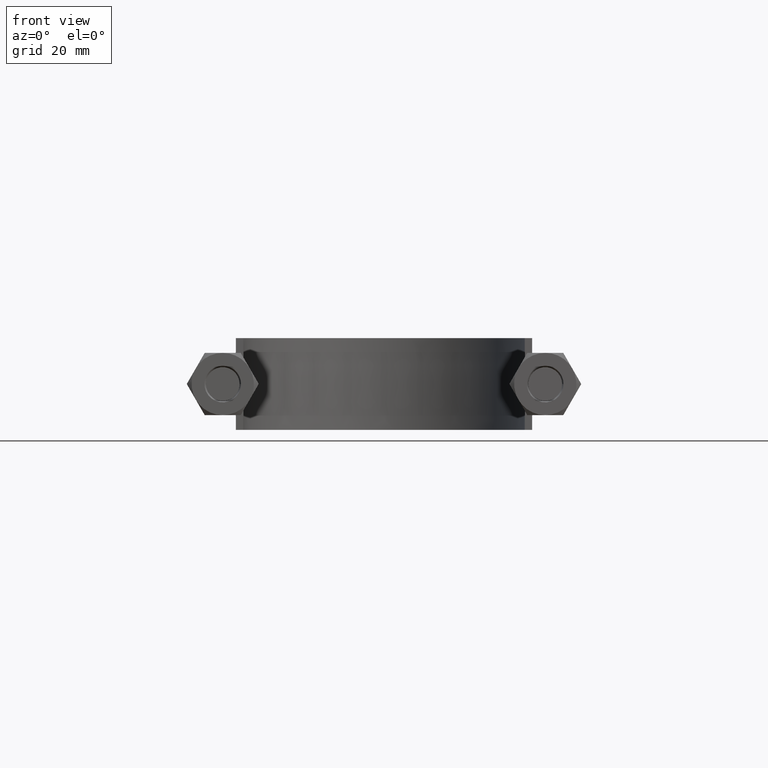
[diagram: clean part render]
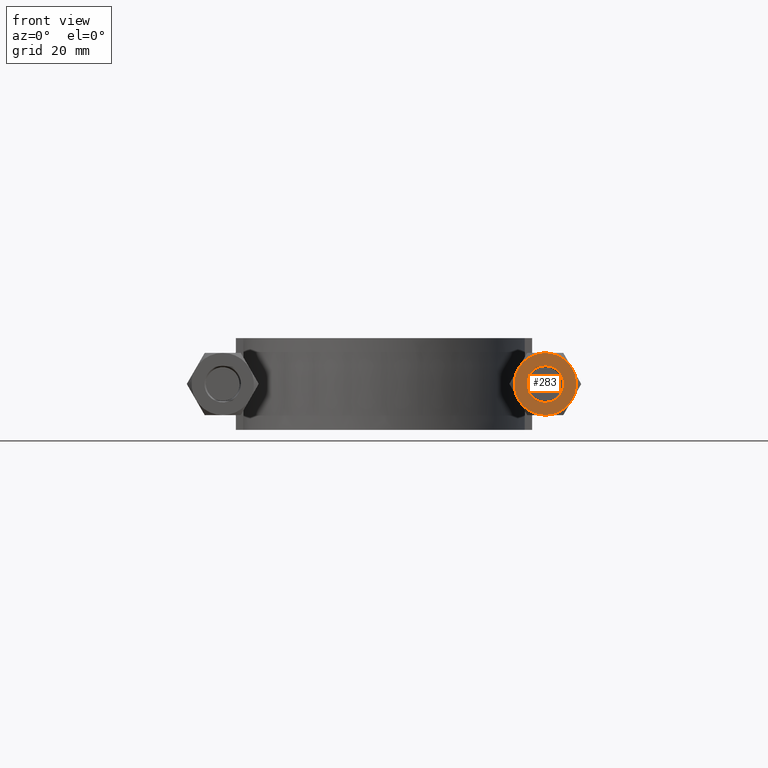
[diagram: same view with one face highlighted and labeled with its STEP entity id]
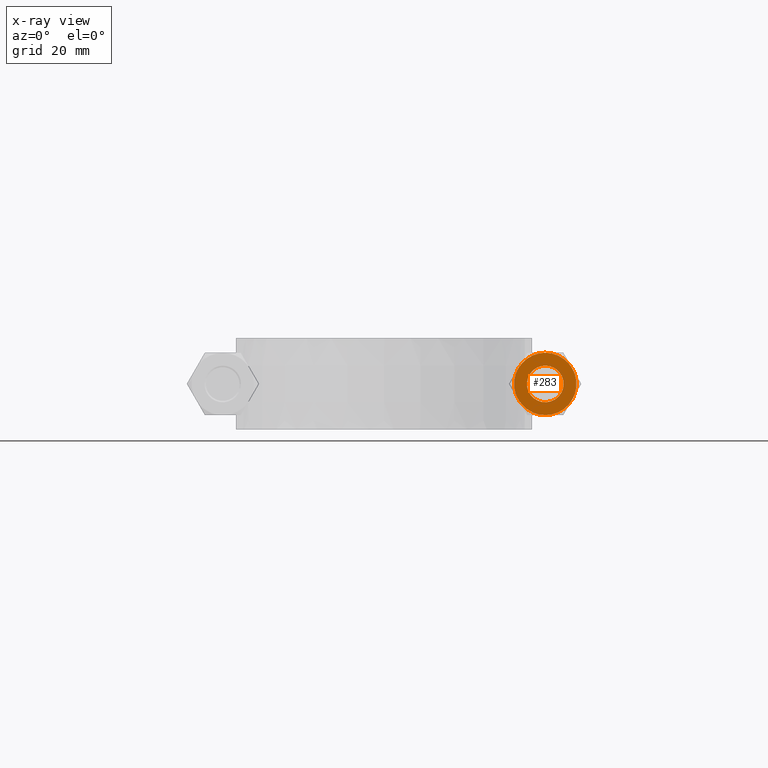
[diagram: x-ray of the same camera — body ghosted, the highlighted face saturated]
A machine part, front view. The second image highlights one B-rep face of the part: STEP entity #283.
The next image is the same camera in x-ray: the body ghosted, the highlighted face saturated — about 0% of this face is hidden behind the body in this view.
In plain terms, the highlighted planar face has unit normal (0, 1, 0).
Its self-contained STEP definition (entity closure, byte-faithful):
#283 = ADVANCED_FACE( '', ( #442, #443 ), #444, .F. );
#442 = FACE_OUTER_BOUND( '', #1439, .T. );
#443 = FACE_BOUND( '', #1440, .T. );
#444 = PLANE( '', #1441 );
#1439 = EDGE_LOOP( '', ( #1914, #1915, #1916, #1917, #1918, #1919 ) );
#1440 = EDGE_LOOP( '', ( #1920 ) );
#1441 = AXIS2_PLACEMENT_3D( '', #1921, #1922, #1923 );
#1914 = ORIENTED_EDGE( '', *, *, #2136, .F. );
#1915 = ORIENTED_EDGE( '', *, *, #2142, .F. );
#1916 = ORIENTED_EDGE( '', *, *, #2117, .F. );
#1917 = ORIENTED_EDGE( '', *, *, #2133, .F. );
#1918 = ORIENTED_EDGE( '', *, *, #2105, .F. );
#1919 = ORIENTED_EDGE( '', *, *, #2143, .F. );
#1920 = ORIENTED_EDGE( '', *, *, #2144, .T. );
#1921 = CARTESIAN_POINT( '', ( 44.0000000000000, 20.0000000000000, 1.48980220521233E-015 ) );
#1922 = DIRECTION( '', ( 1.49966072182214E-032, 1.00000000000000, 6.12303176911190E-017 ) );
#1923 = DIRECTION( '', ( 1.00000000000000, 0.000000000000000, -2.44921270764475E-016 ) );
#2105 = EDGE_CURVE( '', #2322, #2324, #2325, .T. );
#2117 = EDGE_CURVE( '', #2339, #2346, #2347, .T. );
#2133 = EDGE_CURVE( '', #2324, #2339, #2375, .T. );
#2136 = EDGE_CURVE( '', #2379, #2380, #2381, .T. );
#2142 = EDGE_CURVE( '', #2346, #2379, #2389, .T. );
#2143 = EDGE_CURVE( '', #2380, #2322, #2390, .T. );
#2144 = EDGE_CURVE( '', #2391, #2391, #2392, .T. );
#2322 = VERTEX_POINT( '', #2909 );
#2324 = VERTEX_POINT( '', #2916 );
#2325 = CIRCLE( '', #2917, 8.50000000000000 );
#2339 = VERTEX_POINT( '', #2938 );
#2346 = VERTEX_POINT( '', #2957 );
#2347 = CIRCLE( '', #2958, 8.50000000000000 );
#2375 = CIRCLE( '', #2998, 8.50000000000000 );
#2379 = VERTEX_POINT( '', #3007 );
#2380 = VERTEX_POINT( '', #3008 );
#2381 = CIRCLE( '', #3009, 8.50000000000000 );
#2389 = CIRCLE( '', #3029, 8.50000000000000 );
#2390 = CIRCLE( '', #3030, 8.50000000000000 );
#2391 = VERTEX_POINT( '', #3031 );
#2392 = CIRCLE( '', #3032, 5.00000000000000 );
#2909 = CARTESIAN_POINT( '', ( 51.3612159321677, 20.0000000000000, -4.25000000000002 ) );
#2916 = CARTESIAN_POINT( '', ( 44.0000000000000, 20.0000000000000, -8.49999999999999 ) );
#2917 = AXIS2_PLACEMENT_3D( '', #3223, #3224, #3225 );
#2938 = CARTESIAN_POINT( '', ( 36.6387840678323, 20.0000000000000, -4.25000000000000 ) );
#2957 = CARTESIAN_POINT( '', ( 36.6387840678323, 20.0000000000000, 4.25000000000000 ) );
#2958 = AXIS2_PLACEMENT_3D( '', #3242, #3243, #3244 );
#2998 = AXIS2_PLACEMENT_3D( '', #3273, #3274, #3275 );
#3007 = CARTESIAN_POINT( '', ( 44.0000000000000, 20.0000000000000, 8.50000000000000 ) );
#3008 = CARTESIAN_POINT( '', ( 51.3612159321677, 20.0000000000000, 4.25000000000001 ) );
#3009 = AXIS2_PLACEMENT_3D( '', #3279, #3280, #3281 );
#3029 = AXIS2_PLACEMENT_3D( '', #3287, #3288, #3289 );
#3030 = AXIS2_PLACEMENT_3D( '', #3290, #3291, #3292 );
#3031 = CARTESIAN_POINT( '', ( 44.0000000000000, 20.0000000000000, 5.00000000000000 ) );
#3032 = AXIS2_PLACEMENT_3D( '', #3293, #3294, #3295 );
#3223 = CARTESIAN_POINT( '', ( 44.0000000000000, 20.0000000000000, 1.48980220521233E-015 ) );
#3224 = DIRECTION( '', ( 1.49966072182214E-032, 1.00000000000000, 6.12303176911190E-017 ) );
#3225 = DIRECTION( '', ( 0.000000000000000, -6.12303176911190E-017, 1.00000000000000 ) );
#3242 = CARTESIAN_POINT( '', ( 44.0000000000000, 20.0000000000000, 1.48980220521233E-015 ) );
#3243 = DIRECTION( '', ( 1.49966072182214E-032, 1.00000000000000, 6.12303176911190E-017 ) );
#3244 = DIRECTION( '', ( 0.000000000000000, -6.12303176911190E-017, 1.00000000000000 ) );
#3273 = CARTESIAN_POINT( '', ( 44.0000000000000, 20.0000000000000, 1.48980220521233E-015 ) );
#3274 = DIRECTION( '', ( 1.49966072182214E-032, 1.00000000000000, 6.12303176911190E-017 ) );
#3275 = DIRECTION( '', ( 0.000000000000000, -6.12303176911190E-017, 1.00000000000000 ) );
#3279 = CARTESIAN_POINT( '', ( 44.0000000000000, 20.0000000000000, 1.48980220521233E-015 ) );
#3280 = DIRECTION( '', ( 1.49966072182214E-032, 1.00000000000000, 6.12303176911190E-017 ) );
#3281 = DIRECTION( '', ( 0.000000000000000, -6.12303176911190E-017, 1.00000000000000 ) );
#3287 = CARTESIAN_POINT( '', ( 44.0000000000000, 20.0000000000000, 1.48980220521233E-015 ) );
#3288 = DIRECTION( '', ( 1.49966072182214E-032, 1.00000000000000, 6.12303176911190E-017 ) );
#3289 = DIRECTION( '', ( 0.000000000000000, -6.12303176911190E-017, 1.00000000000000 ) );
#3290 = CARTESIAN_POINT( '', ( 44.0000000000000, 20.0000000000000, 1.48980220521233E-015 ) );
#3291 = DIRECTION( '', ( 1.49966072182214E-032, 1.00000000000000, 6.12303176911190E-017 ) );
#3292 = DIRECTION( '', ( 0.000000000000000, -6.12303176911190E-017, 1.00000000000000 ) );
#3293 = CARTESIAN_POINT( '', ( 44.0000000000000, 20.0000000000000, 1.48980220521233E-015 ) );
#3294 = DIRECTION( '', ( 1.49966072182214E-032, 1.00000000000000, 6.12303176911190E-017 ) );
#3295 = DIRECTION( '', ( 0.000000000000000, -6.12303176911190E-017, 1.00000000000000 ) );